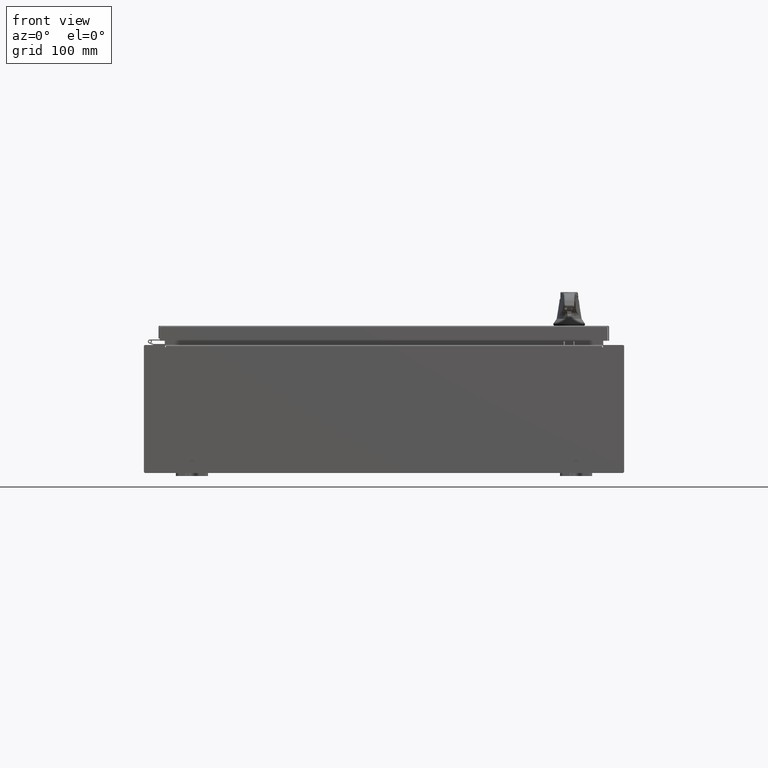
[diagram: clean part render]
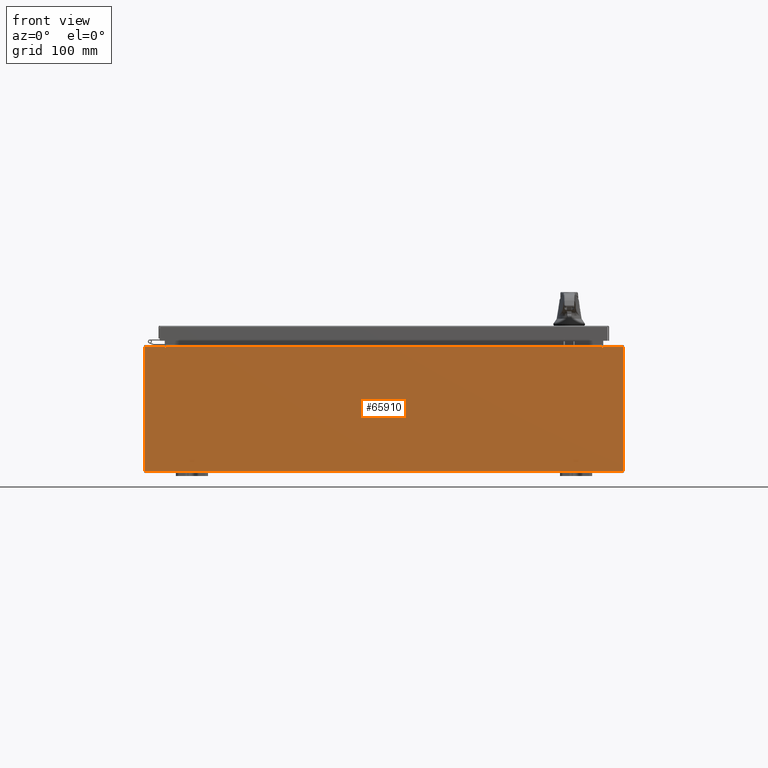
[diagram: same view with one face highlighted and labeled with its STEP entity id]
A machine part, front view. The second image highlights one B-rep face of the part: STEP entity #65910.
In plain terms, the highlighted planar face has unit normal (-0, 1, -0).
Its self-contained STEP definition (entity closure, byte-faithful):
#982 = EDGE_CURVE ( 'NONE', #31975, #23586, #62955, .T. ) ;
#1536 = EDGE_CURVE ( 'NONE', #23586, #78260, #50025, .T. ) ;
#1553 = VECTOR ( 'NONE', #104394, 39.37007874015748100 ) ;
#1711 = CARTESIAN_POINT ( 'NONE',  ( -13.63719999999999600, 1.024442997624098700E-016, 3.912299999999999700 ) ) ;
#1874 = DIRECTION ( 'NONE',  ( 0.0000000000000000000, 0.0000000000000000000, -1.000000000000000000 ) ) ;
#3513 = CARTESIAN_POINT ( 'NONE',  ( -13.67454999999999500, 0.0000000000000000000, 3.874949999999999700 ) ) ;
#5693 = ORIENTED_EDGE ( 'NONE', *, *, #17938, .T. ) ;
#7062 = EDGE_CURVE ( 'NONE', #92686, #78318, #109277, .T. ) ;
#8156 = DIRECTION ( 'NONE',  ( 1.000000000000000000, 0.0000000000000000000, 0.0000000000000000000 ) ) ;
#9593 = EDGE_CURVE ( 'NONE', #41545, #61633, #29284, .T. ) ;
#10783 = CARTESIAN_POINT ( 'NONE',  ( 14.92530000000000200, 0.0000000000000000000, -3.925299999999999600 ) ) ;
#10829 = ORIENTED_EDGE ( 'NONE', *, *, #76960, .F. ) ;
#13750 = EDGE_CURVE ( 'NONE', #50279, #107096, #101569, .T. ) ;
#14952 = DIRECTION ( 'NONE',  ( -4.340572780400004900E-014, 0.0000000000000000000, -1.000000000000000000 ) ) ;
#16196 = DIRECTION ( 'NONE',  ( 0.0000000000000000000, 0.0000000000000000000, -1.000000000000000000 ) ) ;
#17938 = EDGE_CURVE ( 'NONE', #78260, #61633, #52666, .T. ) ;
#18114 = CARTESIAN_POINT ( 'NONE',  ( -14.92529999999999800, 0.0000000000000000000, 3.925299999999999600 ) ) ;
#20747 = VECTOR ( 'NONE', #14952, 39.37007874015748100 ) ;
#21351 = VECTOR ( 'NONE', #1874, 39.37007874015748100 ) ;
#21431 = CARTESIAN_POINT ( 'NONE',  ( 0.0000000000000000000, 0.0000000000000000000, 0.0000000000000000000 ) ) ;
#21487 = EDGE_CURVE ( 'NONE', #53324, #81625, #24199, .T. ) ;
#23586 = VERTEX_POINT ( 'NONE', #94869 ) ;
#24199 = LINE ( 'NONE', #93199, #21351 ) ;
#25905 = ORIENTED_EDGE ( 'NONE', *, *, #9593, .F. ) ;
#26985 = DIRECTION ( 'NONE',  ( 1.000000000000000000, 0.0000000000000000000, 0.0000000000000000000 ) ) ;
#27023 = CARTESIAN_POINT ( 'NONE',  ( 13.63720000000000400, 0.0000000000000000000, 0.0000000000000000000 ) ) ;
#27747 = CARTESIAN_POINT ( 'NONE',  ( -13.63719999999999600, -0.0000000000000000000, 3.874949999999999700 ) ) ;
#29284 = LINE ( 'NONE', #98366, #99285 ) ;
#29745 = CARTESIAN_POINT ( 'NONE',  ( -14.92529999999999800, 0.0000000000000000000, 3.925299999999999600 ) ) ;
#31797 = VECTOR ( 'NONE', #8156, 39.37007874015748100 ) ;
#31975 = VERTEX_POINT ( 'NONE', #10783 ) ;
#37553 = LINE ( 'NONE', #18114, #31797 ) ;
#37723 = CARTESIAN_POINT ( 'NONE',  ( 13.67455000000000400, 0.0000000000000000000, 3.925299999999999600 ) ) ;
#38455 = ORIENTED_EDGE ( 'NONE', *, *, #1536, .T. ) ;
#39818 = DIRECTION ( 'NONE',  ( 0.0000000000000000000, -0.0000000000000000000, -1.000000000000000000 ) ) ;
#40578 = CARTESIAN_POINT ( 'NONE',  ( -14.92529999999999800, 0.0000000000000000000, 3.925299999999999600 ) ) ;
#41545 = VERTEX_POINT ( 'NONE', #3513 ) ;
#42340 = EDGE_CURVE ( 'NONE', #81625, #41545, #117347, .T. ) ;
#43363 = CARTESIAN_POINT ( 'NONE',  ( 14.92530000000000200, 0.0000000000000000000, 3.925299999999999600 ) ) ;
#44934 = LINE ( 'NONE', #70873, #47769 ) ;
#45730 = DIRECTION ( 'NONE',  ( -0.0000000000000000000, 1.000000000000000000, -0.0000000000000000000 ) ) ;
#47769 = VECTOR ( 'NONE', #16196, 39.37007874015748100 ) ;
#48367 = ORIENTED_EDGE ( 'NONE', *, *, #42340, .F. ) ;
#49864 = CARTESIAN_POINT ( 'NONE',  ( -14.92529999999999800, 0.0000000000000000000, -3.925299999999999600 ) ) ;
#50025 = LINE ( 'NONE', #40578, #1553 ) ;
#50279 = VERTEX_POINT ( 'NONE', #94046 ) ;
#51987 = ORIENTED_EDGE ( 'NONE', *, *, #76942, .T. ) ;
#52666 = LINE ( 'NONE', #107809, #77015 ) ;
#53130 = DIRECTION ( 'NONE',  ( 1.000000000000000000, 0.0000000000000000000, 0.0000000000000000000 ) ) ;
#53324 = VERTEX_POINT ( 'NONE', #1711 ) ;
#53988 = DIRECTION ( 'NONE',  ( -0.0000000000000000000, 1.000000000000000000, -0.0000000000000000000 ) ) ;
#57231 = VECTOR ( 'NONE', #104532, 39.37007874015748100 ) ;
#57703 = DIRECTION ( 'NONE',  ( 0.0000000000000000000, -1.000000000000000000, 0.0000000000000000000 ) ) ;
#60311 = EDGE_LOOP ( 'NONE', ( #25905, #48367, #60856, #51987, #72773, #10829, #101195, #90141, #80120, #118213, #38455, #5693 ) ) ;
#60856 = ORIENTED_EDGE ( 'NONE', *, *, #21487, .F. ) ;
#61633 = VERTEX_POINT ( 'NONE', #96332 ) ;
#62381 = EDGE_CURVE ( 'NONE', #83013, #31975, #44934, .T. ) ;
#62803 = DIRECTION ( 'NONE',  ( 0.0000000000000000000, 0.0000000000000000000, 1.000000000000000000 ) ) ;
#62955 = LINE ( 'NONE', #49864, #57231 ) ;
#63005 = AXIS2_PLACEMENT_3D ( 'NONE', #21431, #57703, #39818 ) ;
#65910 = ADVANCED_FACE ( 'NONE', ( #80393 ), #94451, .F. ) ;
#69019 = VECTOR ( 'NONE', #26985, 39.37007874015748100 ) ;
#69632 = CARTESIAN_POINT ( 'NONE',  ( 13.67454999999983300, -0.0000000000000000000, -5.935537951421816200E-013 ) ) ;
#70873 = CARTESIAN_POINT ( 'NONE',  ( 14.92530000000000200, 0.0000000000000000000, 3.925299999999999600 ) ) ;
#72773 = ORIENTED_EDGE ( 'NONE', *, *, #13750, .F. ) ;
#76444 = CARTESIAN_POINT ( 'NONE',  ( 13.67455000000000200, 0.0000000000000000000, 3.874949999999999700 ) ) ;
#76942 = EDGE_CURVE ( 'NONE', #53324, #107096, #96139, .T. ) ;
#76960 = EDGE_CURVE ( 'NONE', #78318, #50279, #93287, .T. ) ;
#77015 = VECTOR ( 'NONE', #53130, 39.37007874015748100 ) ;
#77389 = AXIS2_PLACEMENT_3D ( 'NONE', #108688, #53988, #117891 ) ;
#77603 = EDGE_CURVE ( 'NONE', #92686, #83013, #37553, .T. ) ;
#78260 = VERTEX_POINT ( 'NONE', #29745 ) ;
#78318 = VERTEX_POINT ( 'NONE', #76444 ) ;
#80120 = ORIENTED_EDGE ( 'NONE', *, *, #62381, .T. ) ;
#80393 = FACE_OUTER_BOUND ( 'NONE', #60311, .T. ) ;
#81625 = VERTEX_POINT ( 'NONE', #27747 ) ;
#81774 = DIRECTION ( 'NONE',  ( 0.0000000000000000000, 0.0000000000000000000, 1.000000000000000000 ) ) ;
#83013 = VERTEX_POINT ( 'NONE', #43363 ) ;
#90141 = ORIENTED_EDGE ( 'NONE', *, *, #77603, .T. ) ;
#92686 = VERTEX_POINT ( 'NONE', #37723 ) ;
#93199 = CARTESIAN_POINT ( 'NONE',  ( -13.63719999999999600, -0.0000000000000000000, 0.0000000000000000000 ) ) ;
#93287 = CIRCLE ( 'NONE', #116350, 0.01867499999999949400 ) ;
#94046 = CARTESIAN_POINT ( 'NONE',  ( 13.63720000000000400, 0.0000000000000000000, 3.874949999999999700 ) ) ;
#94451 = PLANE ( 'NONE',  #63005 ) ;
#94869 = CARTESIAN_POINT ( 'NONE',  ( -14.92529999999999800, 0.0000000000000000000, -3.925299999999999600 ) ) ;
#95840 = VECTOR ( 'NONE', #81774, 39.37007874015748100 ) ;
#96018 = CARTESIAN_POINT ( 'NONE',  ( 13.63720000000000400, 0.0000000000000000000, 3.912299999999999700 ) ) ;
#96139 = LINE ( 'NONE', #118423, #69019 ) ;
#96332 = CARTESIAN_POINT ( 'NONE',  ( -13.67454999999999500, 0.0000000000000000000, 3.925299999999999600 ) ) ;
#98366 = CARTESIAN_POINT ( 'NONE',  ( -13.67454999999999500, -0.0000000000000000000, 0.0000000000000000000 ) ) ;
#99285 = VECTOR ( 'NONE', #62803, 39.37007874015748100 ) ;
#100405 = CARTESIAN_POINT ( 'NONE',  ( 13.65587500000000200, 0.0000000000000000000, 3.874949999999999700 ) ) ;
#101195 = ORIENTED_EDGE ( 'NONE', *, *, #7062, .F. ) ;
#101569 = LINE ( 'NONE', #27023, #95840 ) ;
#104394 = DIRECTION ( 'NONE',  ( -0.0000000000000000000, -0.0000000000000000000, 1.000000000000000000 ) ) ;
#104532 = DIRECTION ( 'NONE',  ( -1.000000000000000000, -0.0000000000000000000, -0.0000000000000000000 ) ) ;
#107096 = VERTEX_POINT ( 'NONE', #96018 ) ;
#107809 = CARTESIAN_POINT ( 'NONE',  ( -14.92529999999999800, 0.0000000000000000000, 3.925299999999999600 ) ) ;
#108688 = CARTESIAN_POINT ( 'NONE',  ( -13.65587499999999600, 0.0000000000000000000, 3.874949999999999700 ) ) ;
#109277 = LINE ( 'NONE', #69632, #20747 ) ;
#109589 = DIRECTION ( 'NONE',  ( 0.0000000000000000000, 0.0000000000000000000, -1.000000000000000000 ) ) ;
#116350 = AXIS2_PLACEMENT_3D ( 'NONE', #100405, #45730, #109589 ) ;
#117347 = CIRCLE ( 'NONE', #77389, 0.01867499999999949400 ) ;
#117891 = DIRECTION ( 'NONE',  ( 0.0000000000000000000, 0.0000000000000000000, -1.000000000000000000 ) ) ;
#118213 = ORIENTED_EDGE ( 'NONE', *, *, #982, .T. ) ;
#118423 = CARTESIAN_POINT ( 'NONE',  ( -13.63719999999999800, 1.024442997624098700E-016, 3.912299999999999700 ) ) ;